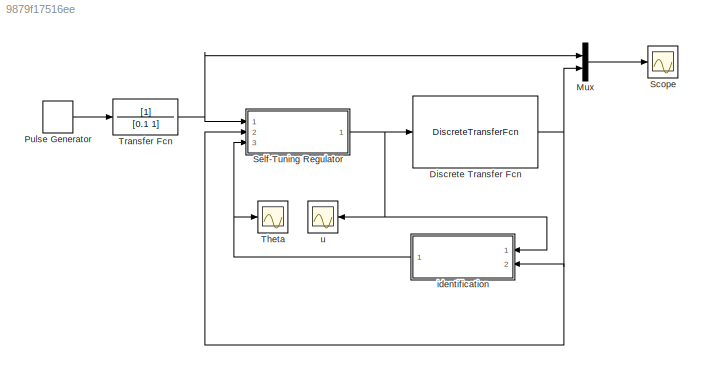
MODEL slx_9879f17516ee
KIND model
CONFIG AbsTol = auto
CONFIG EnableMultiTasking = off
CONFIG FixedStep = 0.005
CONFIG MaxStep = auto
CONFIG MinStep = auto
CONFIG RelTol = 1e-3
CONFIG SampleTimeConstraint = Unconstrained
CONFIG Solver = FixedStepAuto
CONFIG SolverName = FixedStepAuto
CONFIG StartTime = 0.0
CONFIG StopTime = 20
BLOCK [DiscreteTransferFcn] Discrete Transfer Fcn
  Denominator = [1 -1.605 0.605]
  InputPortMap = u0
  Numerator = [0.01 0.004]
  Ports = [1, 1]
  SampleTime = 0.005
BLOCK [Mux] Mux
  DisplayOption = bar
  Inputs = 2
  Ports = [2, 1]
BLOCK [DiscretePulseGenerator] Pulse Generator
  Period = 4
  Ports = [0, 1]
  PulseType = Time based
  PulseWidth = 50
BLOCK [Scope] Scope
  Floating = off
  NumInputPorts = 1
  Ports = [1]
  ScopeSpecificationString = Simulink.scopes.TimeScopeBlockCfg('CurrentConfiguration', extmgr.ConfigurationSet(extmgr.Configuration('Core','General UI',true,'FigureColor',[0 0 0]),extmgr.Configuration('Core','Source UI',true),extmgr.Configuration('Sources','WiredSimulink',true),extmgr.Configuration('Visuals','Time Domain',true,'SerializedDisplays',{struct('MinYLimReal','-0.125','MaxYLimReal','1.125','YLabelReal','','MinYLimMa...<+1501ch>
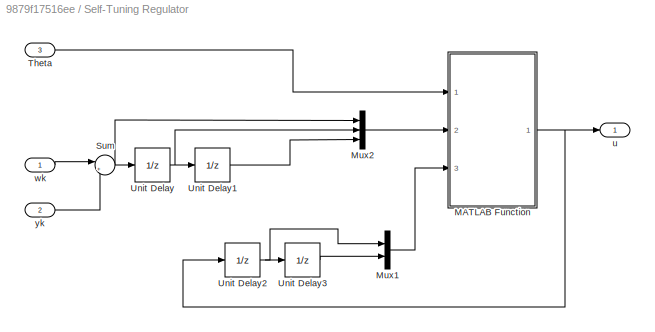
BLOCK [SubSystem] Self-Tuning Regulator
  Ports = [3, 1]
  RequestExecContextInheritance = off
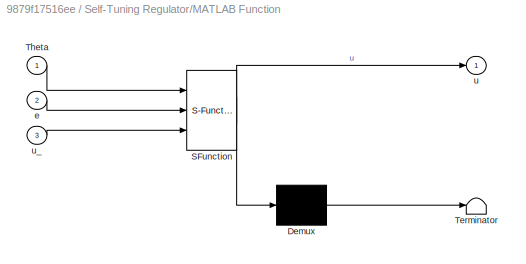
BLOCK [SubSystem] Self-Tuning Regulator/MATLAB Function
  ErrorFcn = Stateflow.Translate.translate
  PermitHierarchicalResolution = ExplicitOnly
  Ports = [3, 1]
  RequestExecContextInheritance = off
  SFBlockType = MATLAB Function
  TreatAsAtomicUnit = on
BLOCK [Demux] Self-Tuning Regulator/MATLAB Function/ Demux 
  Outputs = 1
  Ports = [1, 1]
BLOCK [S-Function] Self-Tuning Regulator/MATLAB Function/ SFunction 
  EnableBusSupport = on
  FunctionName = sf_sfun
  PortCounts = [3 2]
  Ports = [3, 2]
  SFcnIsStateOwnerBlock = off
  SFunctionDeploymentMode = off
  Tag = Stateflow S-Function motor_pos_str 1
BLOCK [Terminator] Self-Tuning Regulator/MATLAB Function/ Terminator 
BLOCK [Inport] Self-Tuning Regulator/MATLAB Function/Theta
  IconDisplay = Port number
BLOCK [Inport] Self-Tuning Regulator/MATLAB Function/e
  IconDisplay = Port number
  Port = 2
BLOCK [Outport] Self-Tuning Regulator/MATLAB Function/u
  IconDisplay = Port number
BLOCK [Inport] Self-Tuning Regulator/MATLAB Function/u_
  IconDisplay = Port number
  Port = 3
BLOCK [Mux] Self-Tuning Regulator/Mux1
  DisplayOption = bar
  Inputs = 2
  Ports = [2, 1]
BLOCK [Mux] Self-Tuning Regulator/Mux2
  DisplayOption = bar
  Inputs = 3
  Ports = [3, 1]
BLOCK [Sum] Self-Tuning Regulator/Sum
  IconShape = round
  InputSameDT = off
  Inputs = |+-
  OutDataTypeStr = Inherit: Inherit via internal rule
  Ports = [2, 1]
  SaturateOnIntegerOverflow = off
BLOCK [Inport] Self-Tuning Regulator/Theta
  IconDisplay = Port number
  Port = 3
BLOCK [UnitDelay] Self-Tuning Regulator/Unit Delay
  InputProcessing = Elements as channels (sample based)
  SampleTime = -1
BLOCK [UnitDelay] Self-Tuning Regulator/Unit Delay1
  InputProcessing = Elements as channels (sample based)
  SampleTime = -1
BLOCK [UnitDelay] Self-Tuning Regulator/Unit Delay2
  InputProcessing = Elements as channels (sample based)
  SampleTime = -1
BLOCK [UnitDelay] Self-Tuning Regulator/Unit Delay3
  InputProcessing = Elements as channels (sample based)
  SampleTime = -1
BLOCK [Outport] Self-Tuning Regulator/u
  IconDisplay = Port number
BLOCK [Inport] Self-Tuning Regulator/wk
  IconDisplay = Port number
BLOCK [Inport] Self-Tuning Regulator/yk
  IconDisplay = Port number
  Port = 2
BLOCK [Scope] Theta
  Floating = off
  NumInputPorts = 1
  Ports = [1]
  ScopeSpecificationString = Simulink.scopes.TimeScopeBlockCfg('CurrentConfiguration', extmgr.ConfigurationSet(extmgr.Configuration('Core','General UI',true),extmgr.Configuration('Core','Source UI',true),extmgr.Configuration('Sources','WiredSimulink',true,'DataLoggingVariableName','ScopeData1'),extmgr.Configuration('Visuals','Time Domain',true,'SerializedDisplays',{struct('MinYLimReal','-1.00000','MaxYLimReal','1.00000','YLab...<+1668ch>
BLOCK [TransferFcn] Transfer Fcn
  Denominator = [0.1 1]
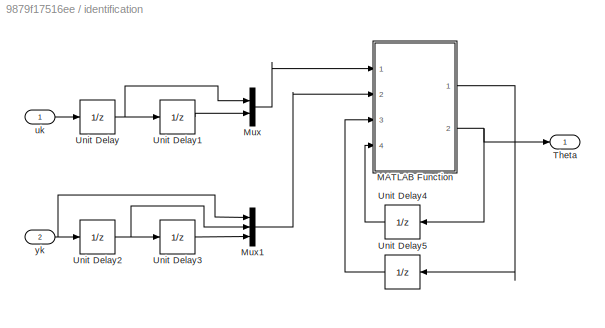
BLOCK [SubSystem] identification
  Ports = [2, 1]
  RequestExecContextInheritance = off
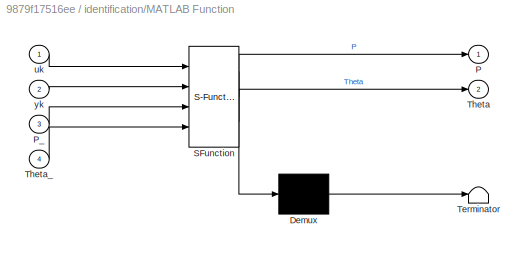
BLOCK [SubSystem] identification/MATLAB Function
  ErrorFcn = Stateflow.Translate.translate
  PermitHierarchicalResolution = ExplicitOnly
  Ports = [4, 2]
  RequestExecContextInheritance = off
  SFBlockType = MATLAB Function
  TreatAsAtomicUnit = on
BLOCK [Demux] identification/MATLAB Function/ Demux 
  Outputs = 1
  Ports = [1, 1]
BLOCK [S-Function] identification/MATLAB Function/ SFunction 
  EnableBusSupport = on
  FunctionName = sf_sfun
  PortCounts = [4 3]
  Ports = [4, 3]
  SFcnIsStateOwnerBlock = off
  SFunctionDeploymentMode = off
  Tag = Stateflow S-Function motor_pos_str 2
BLOCK [Terminator] identification/MATLAB Function/ Terminator 
BLOCK [Outport] identification/MATLAB Function/P
  IconDisplay = Port number
BLOCK [Inport] identification/MATLAB Function/P_
  IconDisplay = Port number
  Port = 3
BLOCK [Outport] identification/MATLAB Function/Theta
  IconDisplay = Port number
  Port = 2
BLOCK [Inport] identification/MATLAB Function/Theta_
  IconDisplay = Port number
  Port = 4
BLOCK [Inport] identification/MATLAB Function/uk
  IconDisplay = Port number
BLOCK [Inport] identification/MATLAB Function/yk
  IconDisplay = Port number
  Port = 2
BLOCK [Mux] identification/Mux
  DisplayOption = bar
  Inputs = 2
  Ports = [2, 1]
BLOCK [Mux] identification/Mux1
  DisplayOption = bar
  Inputs = 3
  Ports = [3, 1]
BLOCK [Outport] identification/Theta
  IconDisplay = Port number
BLOCK [UnitDelay] identification/Unit Delay
  InputProcessing = Elements as channels (sample based)
  SampleTime = -1
BLOCK [UnitDelay] identification/Unit Delay1
  InputProcessing = Elements as channels (sample based)
  SampleTime = -1
BLOCK [UnitDelay] identification/Unit Delay2
  InputProcessing = Elements as channels (sample based)
  SampleTime = -1
BLOCK [UnitDelay] identification/Unit Delay3
  InputProcessing = Elements as channels (sample based)
  SampleTime = -1
BLOCK [UnitDelay] identification/Unit Delay4
  InputProcessing = Elements as channels (sample based)
  SampleTime = -1
BLOCK [UnitDelay] identification/Unit Delay5
  InputProcessing = Elements as channels (sample based)
  SampleTime = -1
BLOCK [Inport] identification/uk
  IconDisplay = Port number
BLOCK [Inport] identification/yk
  IconDisplay = Port number
  Port = 2
BLOCK [Scope] u
  Floating = off
  NumInputPorts = 1
  Ports = [1]
  ScopeSpecificationString = Simulink.scopes.TimeScopeBlockCfg('CurrentConfiguration', extmgr.ConfigurationSet(extmgr.Configuration('Core','General UI',true),extmgr.Configuration('Core','Source UI',true),extmgr.Configuration('Sources','WiredSimulink',true,'DataLoggingVariableName','ScopeData2'),extmgr.Configuration('Visuals','Time Domain',true,'SerializedDisplays',{struct('MinYLimReal','-1.00000','MaxYLimReal','1.00000','YLab...<+1380ch>
NET Discrete Transfer Fcn:1 -> Mux:2, Self-Tuning Regulator:2, identification:2
LINE Mux:1 -> Scope:1
LINE Pulse Generator:1 -> Transfer Fcn:1
NET Self-Tuning Regulator/MATLAB Function:1 -> Self-Tuning Regulator/Unit Delay2:1, Self-Tuning Regulator/u:1
LINE Self-Tuning Regulator/Mux1:1 -> Self-Tuning Regulator/MATLAB Function:3
LINE Self-Tuning Regulator/Mux2:1 -> Self-Tuning Regulator/MATLAB Function:2
NET Self-Tuning Regulator/Sum:1 -> Self-Tuning Regulator/Mux2:1, Self-Tuning Regulator/Unit Delay:1
LINE Self-Tuning Regulator/Theta:1 -> Self-Tuning Regulator/MATLAB Function:1
LINE Self-Tuning Regulator/Unit Delay1:1 -> Self-Tuning Regulator/Mux2:3
NET Self-Tuning Regulator/Unit Delay2:1 -> Self-Tuning Regulator/Mux1:1, Self-Tuning Regulator/Unit Delay3:1
LINE Self-Tuning Regulator/Unit Delay3:1 -> Self-Tuning Regulator/Mux1:2
NET Self-Tuning Regulator/Unit Delay:1 -> Self-Tuning Regulator/Mux2:2, Self-Tuning Regulator/Unit Delay1:1
LINE Self-Tuning Regulator/wk:1 -> Self-Tuning Regulator/Sum:1
LINE Self-Tuning Regulator/yk:1 -> Self-Tuning Regulator/Sum:2
NET Self-Tuning Regulator:1 -> Discrete Transfer Fcn:1, identification:1, u:1
NET Transfer Fcn:1 -> Mux:1, Self-Tuning Regulator:1
LINE identification/MATLAB Function:1 -> identification/Unit Delay5:1
NET identification/MATLAB Function:2 -> identification/Theta:1, identification/Unit Delay4:1
LINE identification/Mux1:1 -> identification/MATLAB Function:2
LINE identification/Mux:1 -> identification/MATLAB Function:1
LINE identification/Unit Delay1:1 -> identification/Mux:2
NET identification/Unit Delay2:1 -> identification/Mux1:2, identification/Unit Delay3:1
LINE identification/Unit Delay3:1 -> identification/Mux1:3
LINE identification/Unit Delay4:1 -> identification/MATLAB Function:4
LINE identification/Unit Delay5:1 -> identification/MATLAB Function:3
NET identification/Unit Delay:1 -> identification/Mux:1, identification/Unit Delay1:1
LINE identification/uk:1 -> identification/Unit Delay:1
NET identification/yk:1 -> identification/Mux1:1, identification/Unit Delay2:1
NET identification:1 -> Self-Tuning Regulator:3, Theta:1
note: NET lines group one-source signal fan-out (src -> all destinations, sorted); 1:1 wires keep LINE
CHART Self-Tuning
Regulator/MATLAB Function states=1 transitions=1
  STATE_LABEL 'eML_blk_kernel()'
  STATE_LABEL 'SCRIPT:\n% Ham tinh thong so bo dieu khien theo pp dat cuc lien tuc\nfunction u = STR_pp1(Theta,e,u_)\n\nT0 = 0.005;\nxi = 0.9;\nwn = 50;\n\n% Gan lai thong so de thuan tien viec tinh toan\na1 = Theta(1);\na2 = Theta(2);\nb1 = Theta(3);\nb2 = Theta(4);\n\n% Tinh thong so bo dieu khien\nif(xi<1)\nd1 = -2*exp(-xi*wn*T0)*cos(wn*T0*sqrt(1-xi^2)); % xi<1\nelse\nd1 = -2*exp(-xi*wn*T0)*cosh(wn*T0*sqrt(xi^2-1)); % xi>1\nend...<+282ch>'
CHART identification/MATLAB Function states=1 transitions=1
  STATE_LABEL 'eML_blk_kernel()'
  STATE_LABEL "SCRIPT:\nfunction [P,Theta] = Uocluong(uk,yk,P_,Theta_)\nlamda = 0.96;\nPHI = [-yk(2); -yk(3); uk(1); uk(2)];\ne = yk(1) - PHI'*Theta_;\nL = P_*PHI / (lamda + PHI'*P_*PHI);\nP = 1/lamda*(P_ - P_*PHI*PHI'*P_ /(lamda + PHI'*P_*PHI));\nTheta = Theta_ + L*e;\n"
